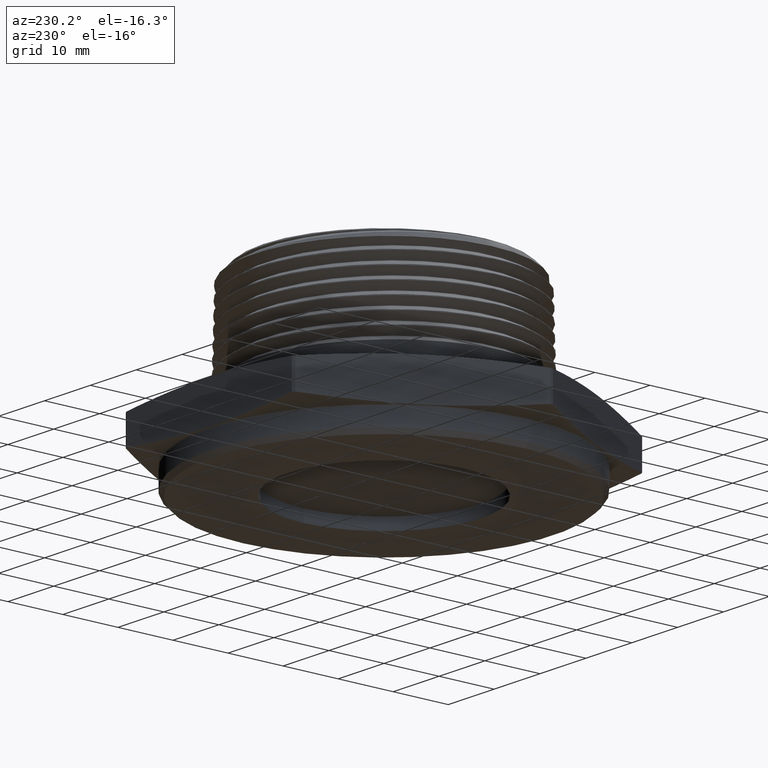
[diagram: clean part render]
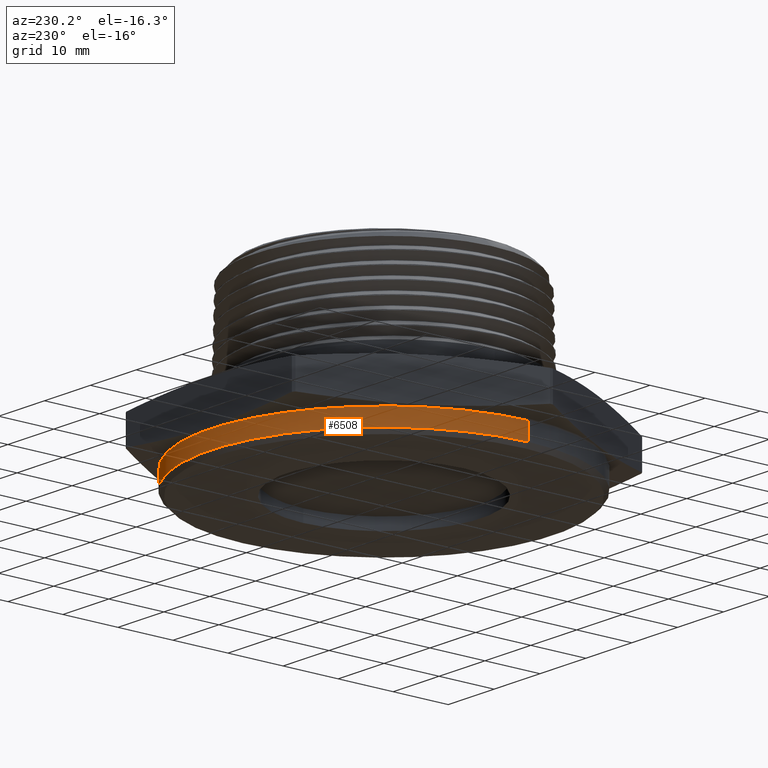
[diagram: same view with one face highlighted and labeled with its STEP entity id]
A machine part, auxiliary view. The second image highlights one B-rep face of the part: STEP entity #6508.
In plain terms, the highlighted cylindrical surface (partial cylindrical patch) has radius 31.496 mm, axis along (-0, -0, 1).
Its self-contained STEP definition (entity closure, byte-faithful):
#62 = CARTESIAN_POINT ( 'NONE',  ( 0.0000000000000000000, 0.0000000000000000000, -0.1300000000000000600 ) ) ;
#63 = DIRECTION ( 'NONE',  ( 0.0000000000000000000, 0.0000000000000000000, 1.000000000000000000 ) ) ;
#64 = DIRECTION ( 'NONE',  ( -1.000000000000000000, 0.0000000000000000000, 0.0000000000000000000 ) ) ;
#503 = CARTESIAN_POINT ( 'NONE',  ( 1.240000000000000000, 0.0000000000000000000, -0.1600000000000000000 ) ) ;
#504 = DIRECTION ( 'NONE',  ( -0.0000000000000000000, -0.0000000000000000000, 1.000000000000000000 ) ) ;
#509 = CARTESIAN_POINT ( 'NONE',  ( 0.0000000000000000000, 0.0000000000000000000, -0.008097840331950455200 ) ) ;
#510 = DIRECTION ( 'NONE',  ( -6.274932739761922300E-017, -0.0000000000000000000, -1.000000000000000000 ) ) ;
#511 = DIRECTION ( 'NONE',  ( -1.000000000000000000, 0.0000000000000000000, 6.282286527768749900E-017 ) ) ;
#519 = CARTESIAN_POINT ( 'NONE',  ( -1.240000000000000000, 1.518562030942717800E-016, -0.1600000000000000000 ) ) ;
#527 = DIRECTION ( 'NONE',  ( -0.0000000000000000000, -0.0000000000000000000, 1.000000000000000000 ) ) ;
#611 = FACE_OUTER_BOUND ( 'NONE', #6497, .T. ) ;
#613 = CYLINDRICAL_SURFACE ( 'NONE', #7728, 1.240000000000000000 ) ;
#718 = CIRCLE ( 'NONE', #7485, 1.240000000000000000 ) ;
#754 = CIRCLE ( 'NONE', #7498, 1.240000000000000000 ) ;
#755 = LINE ( 'NONE', #503, #756 ) ;
#756 = VECTOR ( 'NONE', #504, 39.37007874015748100 ) ;
#762 = LINE ( 'NONE', #519, #767 ) ;
#767 = VECTOR ( 'NONE', #527, 39.37007874015748100 ) ;
#3806 = ORIENTED_EDGE ( 'NONE', *, *, #7617, .F. ) ;
#3807 = ORIENTED_EDGE ( 'NONE', *, *, #7620, .T. ) ;
#3808 = ORIENTED_EDGE ( 'NONE', *, *, #7627, .T. ) ;
#3809 = ORIENTED_EDGE ( 'NONE', *, *, #7583, .T. ) ;
#6036 = VERTEX_POINT ( 'NONE', #6803 ) ;
#6037 = VERTEX_POINT ( 'NONE', #6802 ) ;
#6039 = VERTEX_POINT ( 'NONE', #6800 ) ;
#6042 = VERTEX_POINT ( 'NONE', #6797 ) ;
#6497 = EDGE_LOOP ( 'NONE', ( #3809, #3808, #3807, #3806 ) ) ;
#6508 = ADVANCED_FACE ( 'NONE', ( #611 ), #613, .T. ) ;
#6685 = DIRECTION ( 'NONE',  ( -0.0000000000000000000, -0.0000000000000000000, 1.000000000000000000 ) ) ;
#6686 = CARTESIAN_POINT ( 'NONE',  ( 0.0000000000000000000, 0.0000000000000000000, -0.1600000000000000000 ) ) ;
#6688 = DIRECTION ( 'NONE',  ( 1.000000000000000000, 0.0000000000000000000, 0.0000000000000000000 ) ) ;
#6797 = CARTESIAN_POINT ( 'NONE',  ( -1.240000000000000000, 1.518562030942717800E-016, -0.008097840331950377200 ) ) ;
#6800 = CARTESIAN_POINT ( 'NONE',  ( 1.240000000000000000, 0.0000000000000000000, -0.008097840331950531500 ) ) ;
#6802 = CARTESIAN_POINT ( 'NONE',  ( -1.240000000000000000, 1.518562030942717800E-016, -0.1300000000000000600 ) ) ;
#6803 = CARTESIAN_POINT ( 'NONE',  ( 1.240000000000000000, 0.0000000000000000000, -0.1300000000000000600 ) ) ;
#7485 = AXIS2_PLACEMENT_3D ( 'NONE', #62, #63, #64 ) ;
#7498 = AXIS2_PLACEMENT_3D ( 'NONE', #509, #510, #511 ) ;
#7583 = EDGE_CURVE ( 'NONE', #6036, #6037, #718, .T. ) ;
#7617 = EDGE_CURVE ( 'NONE', #6036, #6039, #755, .T. ) ;
#7620 = EDGE_CURVE ( 'NONE', #6042, #6039, #754, .T. ) ;
#7627 = EDGE_CURVE ( 'NONE', #6037, #6042, #762, .T. ) ;
#7728 = AXIS2_PLACEMENT_3D ( 'NONE', #6686, #6685, #6688 ) ;